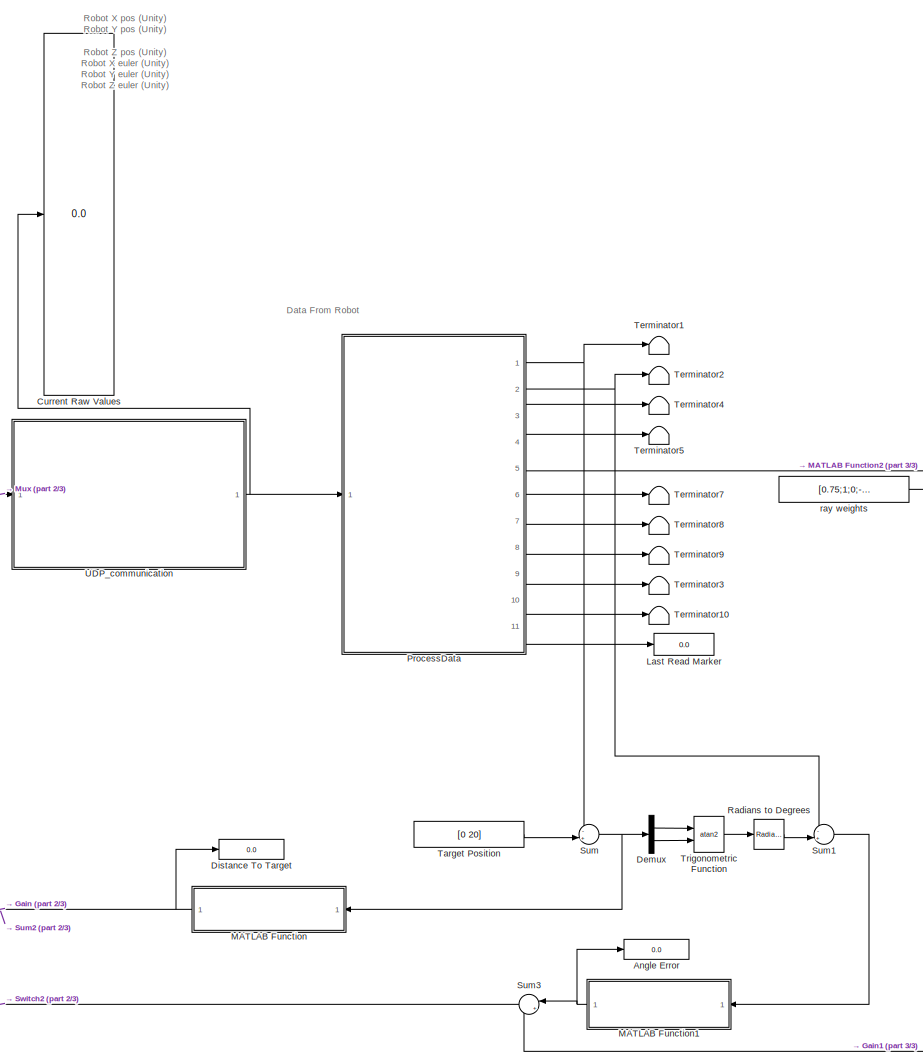
[diagram: root canvas - part 1/3, center side, full height]
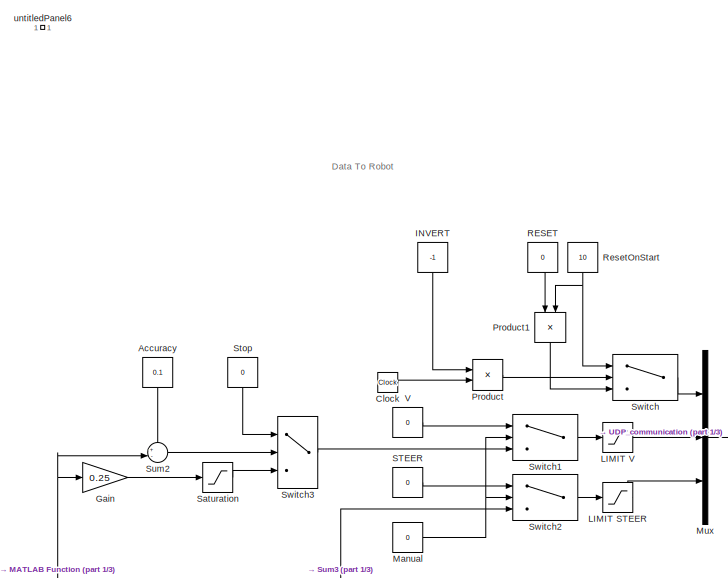
[diagram: root canvas - part 2/3, middle left region]
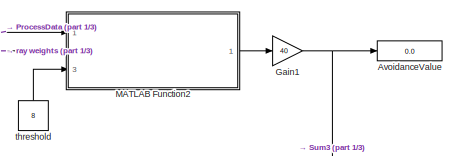
[diagram: root canvas - part 3/3, middle right region]
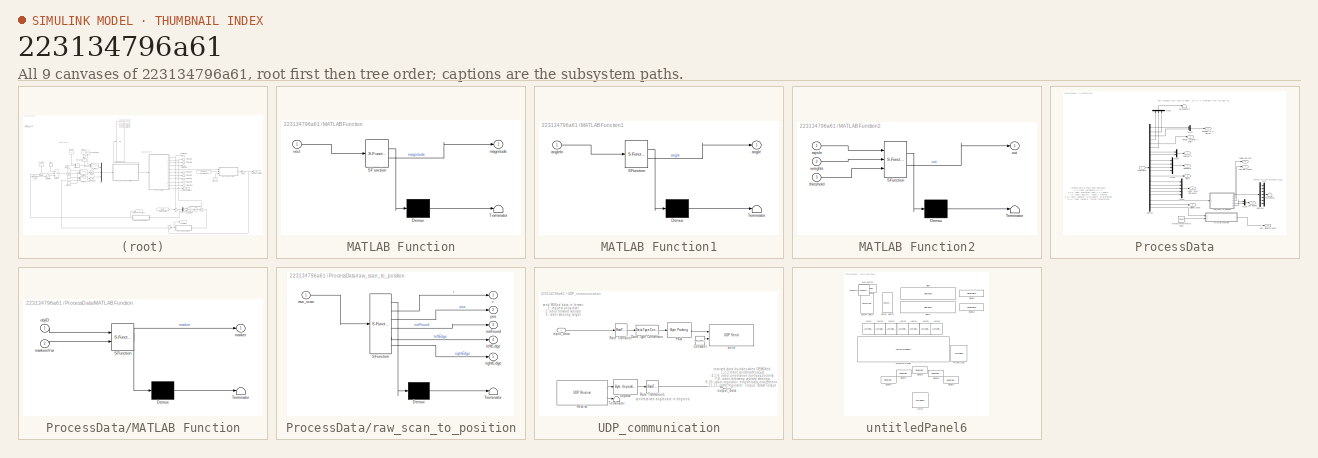
[diagram: thumbnail index - all 9 canvases of the model, root first then tree order]
MODEL slx_223134796a61
KIND model
CONFIG AbsTol = auto
CONFIG EnableMultiTasking = off
CONFIG FixedStep = 1/model_frequency
CONFIG MaxStep = auto
CONFIG MinStep = auto
CONFIG RelTol = 1e-3
CONFIG SampleTimeConstraint = Unconstrained
CONFIG SolverName = FixedStepAuto
CONFIG StartTime = 0.0
CONFIG StopTime = inf
BLOCK [Constant] Accuracy
  NameLocation = left
  Value = 0.1
BLOCK [Display] Angle Error
  Decimation = 1
  Ports = [1]
BLOCK [Display] AvoidanceValue
  Decimation = 1
  Ports = [1]
BLOCK [Clock] Clock
BLOCK [Display] Current Raw Values
  Decimation = 1
  NameLocation = top
  Ports = [1]
BLOCK [Demux] Demux
  Outputs = 2
  Ports = [1, 2]
BLOCK [Display] Distance To Target
  Decimation = 1
  Ports = [1]
BLOCK [Gain] Gain
  Gain = 0.25
BLOCK [Gain] Gain1
  Gain = 40
BLOCK [Constant] INVERT
  NameLocation = right
  Value = -1
BLOCK [Saturate] LIMIT STEER
  LowerLimit = steerLim(1)
  UpperLimit = steerLim(2)
BLOCK [Saturate] LIMIT V
  LowerLimit = velLim(1)
  UpperLimit = velLim(2)
BLOCK [Display] Last Read Marker
  Decimation = 1
  Ports = [1]
BLOCK [SubSystem] MATLAB Function
  ErrorFcn = Stateflow.Translate.translate
  NameLocation = top
  PermitHierarchicalResolution = ExplicitOnly
  Ports = [1, 1]
  RequestExecContextInheritance = off
  SFBlockType = MATLAB Function
  TreatAsAtomicUnit = on
BLOCK [Demux] MATLAB Function/ Demux 
  Outputs = 1
  Ports = [1, 1]
BLOCK [S-Function] MATLAB Function/ SFunction 
  EnableBusSupport = on
  FunctionName = sf_sfun
  PortCounts = [1 2]
  Ports = [1, 2]
  SFcnIsStateOwnerBlock = off
  SFunctionDeploymentMode = off
  Tag = Stateflow S-Function 1
BLOCK [Terminator] MATLAB Function/ Terminator 
BLOCK [Outport] MATLAB Function/magnitude
BLOCK [Inport] MATLAB Function/vect
BLOCK [SubSystem] MATLAB Function1
  ErrorFcn = Stateflow.Translate.translate
  NameLocation = top
  PermitHierarchicalResolution = ExplicitOnly
  Ports = [1, 1]
  RequestExecContextInheritance = off
  SFBlockType = MATLAB Function
  TreatAsAtomicUnit = on
BLOCK [Demux] MATLAB Function1/ Demux 
  Outputs = 1
  Ports = [1, 1]
BLOCK [S-Function] MATLAB Function1/ SFunction 
  EnableBusSupport = on
  FunctionName = sf_sfun
  PortCounts = [1 2]
  Ports = [1, 2]
  SFcnIsStateOwnerBlock = off
  SFunctionDeploymentMode = off
  Tag = Stateflow S-Function 3
BLOCK [Terminator] MATLAB Function1/ Terminator 
BLOCK [Outport] MATLAB Function1/angle
BLOCK [Inport] MATLAB Function1/angleIn
BLOCK [SubSystem] MATLAB Function2
  ErrorFcn = Stateflow.Translate.translate
  PermitHierarchicalResolution = ExplicitOnly
  Ports = [3, 1]
  RequestExecContextInheritance = off
  SFBlockType = MATLAB Function
  TreatAsAtomicUnit = on
BLOCK [Demux] MATLAB Function2/ Demux 
  Outputs = 1
  Ports = [1, 1]
BLOCK [S-Function] MATLAB Function2/ SFunction 
  EnableBusSupport = on
  FunctionName = sf_sfun
  PortCounts = [3 2]
  Ports = [3, 2]
  SFcnIsStateOwnerBlock = off
  SFunctionDeploymentMode = off
  Tag = Stateflow S-Function 5
BLOCK [Terminator] MATLAB Function2/ Terminator 
BLOCK [Outport] MATLAB Function2/out
BLOCK [Inport] MATLAB Function2/raysIn
BLOCK [Inport] MATLAB Function2/threshold
  Port = 3
BLOCK [Inport] MATLAB Function2/weights
  Port = 2
BLOCK [Constant] Manual
  Value = 0
BLOCK [Mux] Mux
  DisplayOption = bar
  Inputs = 3
  Ports = [3, 1]
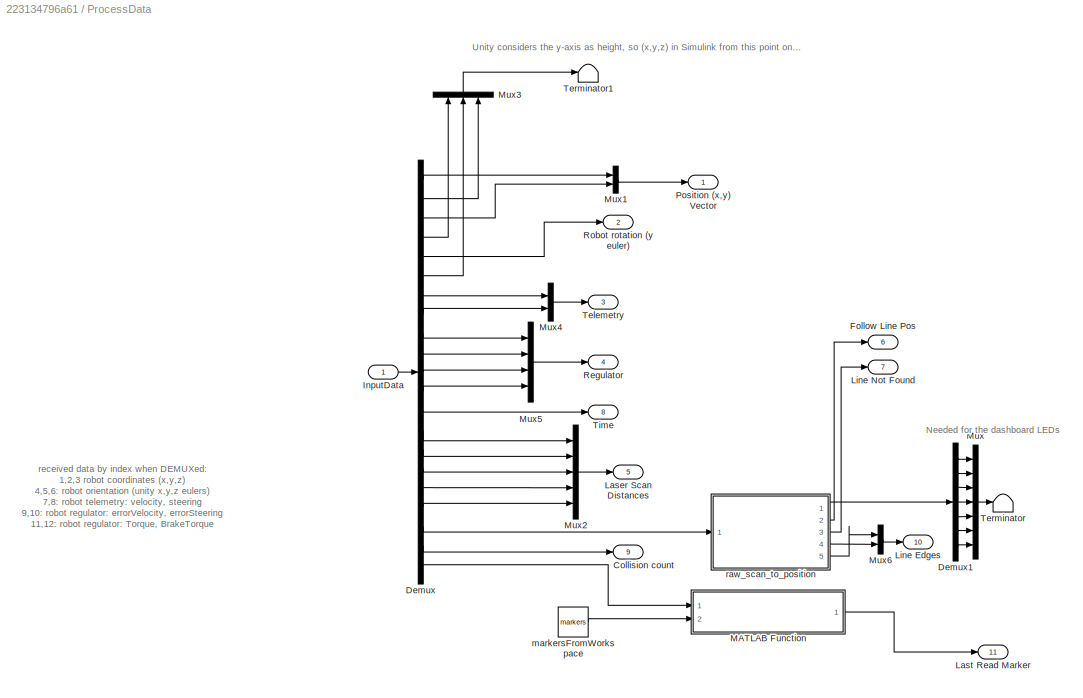
BLOCK [SubSystem] ProcessData
  Ports = [1, 11]
  RequestExecContextInheritance = off
BLOCK [Outport] ProcessData/Collision count
  NameLocation = top
  Port = 9
BLOCK [Demux] ProcessData/Demux
  Outputs = 21
  Ports = [1, 21]
BLOCK [Demux] ProcessData/Demux1
  Outputs = 7
  Ports = [1, 7]
BLOCK [Outport] ProcessData/Follow Line Pos
  NameLocation = top
  Port = 6
BLOCK [Inport] ProcessData/InputData
BLOCK [Outport] ProcessData/Laser Scan Distances
  Port = 5
BLOCK [Outport] ProcessData/Last Read Marker
  NameLocation = top
  Port = 11
BLOCK [Outport] ProcessData/Line Edges
  NameLocation = top
  Port = 10
BLOCK [Outport] ProcessData/Line Not Found
  Port = 7
BLOCK [SubSystem] ProcessData/MATLAB Function
  ErrorFcn = Stateflow.Translate.translate
  PermitHierarchicalResolution = ExplicitOnly
  Ports = [2, 1]
  RequestExecContextInheritance = off
  SFBlockType = MATLAB Function
  TreatAsAtomicUnit = on
BLOCK [Demux] ProcessData/MATLAB Function/ Demux 
  Outputs = 1
  Ports = [1, 1]
BLOCK [S-Function] ProcessData/MATLAB Function/ SFunction 
  EnableBusSupport = on
  FunctionName = sf_sfun
  PortCounts = [2 2]
  Ports = [2, 2]
  SFcnIsStateOwnerBlock = off
  SFunctionDeploymentMode = off
  Tag = Stateflow S-Function 4
BLOCK [Terminator] ProcessData/MATLAB Function/ Terminator 
BLOCK [Outport] ProcessData/MATLAB Function/marker
BLOCK [Inport] ProcessData/MATLAB Function/markersVar
  Port = 2
BLOCK [Inport] ProcessData/MATLAB Function/objID
BLOCK [Mux] ProcessData/Mux
  DisplayOption = bar
  Inputs = 7
  Ports = [7, 1]
BLOCK [Mux] ProcessData/Mux1
  DisplayOption = bar
  Inputs = 2
  Ports = [2, 1]
BLOCK [Mux] ProcessData/Mux2
  DisplayOption = bar
  Inputs = 5
  Ports = [5, 1]
BLOCK [Mux] ProcessData/Mux3
  DisplayOption = bar
  Inputs = 3
  NameLocation = right
  Ports = [3, 1]
BLOCK [Mux] ProcessData/Mux4
  DisplayOption = bar
  Inputs = 2
  Ports = [2, 1]
BLOCK [Mux] ProcessData/Mux5
  DisplayOption = bar
  Ports = [4, 1]
BLOCK [Mux] ProcessData/Mux6
  DisplayOption = bar
  Inputs = 2
  Ports = [2, 1]
BLOCK [Outport] ProcessData/Position (x,y) Vector
  NameLocation = top
BLOCK [Outport] ProcessData/Regulator
  Port = 4
BLOCK [Outport] ProcessData/Robot rotation (y euler)
  NameLocation = top
  Port = 2
BLOCK [Outport] ProcessData/Telemetry
  Port = 3
BLOCK [Terminator] ProcessData/Terminator
BLOCK [Terminator] ProcessData/Terminator1
BLOCK [Outport] ProcessData/Time
  Port = 8
BLOCK [Constant] ProcessData/markersFromWorkspace
  Value = markers
BLOCK [SubSystem] ProcessData/raw_scan_to_position
  ErrorFcn = Stateflow.Translate.translate
  PermitHierarchicalResolution = ExplicitOnly
  Ports = [1, 5]
  RequestExecContextInheritance = off
  SFBlockType = MATLAB Function
  TreatAsAtomicUnit = on
BLOCK [Demux] ProcessData/raw_scan_to_position/ Demux 
  Outputs = 1
  Ports = [1, 1]
BLOCK [S-Function] ProcessData/raw_scan_to_position/ SFunction 
  EnableBusSupport = on
  FunctionName = sf_sfun
  Parameters = rayDistance
  PortCounts = [1 6]
  Ports = [1, 6]
  SFcnIsStateOwnerBlock = off
  SFunctionDeploymentMode = off
  Tag = Stateflow S-Function 2
BLOCK [Terminator] ProcessData/raw_scan_to_position/ Terminator 
BLOCK [Outport] ProcessData/raw_scan_to_position/leftEdge
  Port = 4
BLOCK [Outport] ProcessData/raw_scan_to_position/notFound
  Port = 3
BLOCK [Outport] ProcessData/raw_scan_to_position/pos
  Port = 2
BLOCK [Outport] ProcessData/raw_scan_to_position/r
BLOCK [Inport] ProcessData/raw_scan_to_position/raw_scan
BLOCK [Outport] ProcessData/raw_scan_to_position/rightEdge
  Port = 5
BLOCK [Product] Product
  Ports = [2, 1]
BLOCK [Product] Product1
  NameLocation = left
  Ports = [2, 1]
BLOCK [Constant] RESET
  NameLocation = left
  Value = 0
BLOCK [Reference] Radians to Degrees  REF=simulink_extras/Transformations/Radians
to Degrees
  Ports = [1, 1]
  SourceBlock = simulink_extras/Transformations/Radians\nto Degrees
  SourceProductBaseCode = SL
  SourceType = RadiansToDegrees
BLOCK [Constant] ResetOnStart
  NameLocation = right
  Value = 10
BLOCK [Constant] STEER
  Value = 0
BLOCK [Saturate] Saturation
  LowerLimit = -1
  UpperLimit = 1
BLOCK [Constant] Stop
  NameLocation = left
  Value = 0
BLOCK [Sum] Sum
  Inputs = -+|
  Ports = [2, 1]
BLOCK [Sum] Sum1
  Inputs = -+|
  Ports = [2, 1]
BLOCK [Sum] Sum2
  Inputs = +-|
  NameLocation = top
  Ports = [2, 1]
BLOCK [Sum] Sum3
  Inputs = |++
  NameLocation = top
  Ports = [2, 1]
BLOCK [Switch] Switch
  Criteria = u2 > Threshold
  InputSameDT = off
  SaturateOnIntegerOverflow = off
  Threshold = -0.5
BLOCK [Switch] Switch1
  InputSameDT = off
  SaturateOnIntegerOverflow = off
  Threshold = 0.5
BLOCK [Switch] Switch2
  InputSameDT = off
  SaturateOnIntegerOverflow = off
  Threshold = 0.5
BLOCK [Switch] Switch3
  Criteria = u2 > Threshold
  InputSameDT = off
  SaturateOnIntegerOverflow = off
BLOCK [Constant] Target Position
  Value = [0 20]
BLOCK [Terminator] Terminator1
BLOCK [Terminator] Terminator10
BLOCK [Terminator] Terminator2
BLOCK [Terminator] Terminator3
BLOCK [Terminator] Terminator4
BLOCK [Terminator] Terminator5
BLOCK [Terminator] Terminator7
BLOCK [Terminator] Terminator8
BLOCK [Terminator] Terminator9
BLOCK [Trigonometry] Trigonometric Function
  Operator = atan2
  Ports = [2, 1]
BLOCK [SubSystem] UDP_communication
  Ports = [1, 1]
  RequestExecContextInheritance = off
BLOCK [Constant] UDP_communication/Constant
  Value = send_data_length
BLOCK [DataTypeConversion] UDP_communication/Data Type Conversion
  OutDataTypeStr = single
  RndMeth = Floor
  SaturateOnIntegerOverflow = off
BLOCK [Reference] UDP_communication/Pack  REF=slrealtimeutilitieslib/Byte Packing
  Ports = [1, 1]
  SourceBlock = slrealtimeutilitieslib/Byte Packing
  SourceProductBaseCode = XP
  SourceType = slrealtimebytepacking
BLOCK [RateTransition] UDP_communication/Rate Transition
BLOCK [RateTransition] UDP_communication/Rate Transition1
BLOCK [Reference] UDP_communication/Receive  REF=slrealtimeiplib/UDP Receive
  Ports = [0, 2]
  SourceBlock = slrealtimeiplib/UDP Receive
  SourceProductBaseCode = XP
  SourceType = slrealtimeudpreceive
BLOCK [Reference] UDP_communication/Send  REF=slrealtimeiplib/UDP Send
  Ports = [2]
  SourceBlock = slrealtimeiplib/UDP Send
  SourceProductBaseCode = XP
  SourceType = slrealtimeudpsend
BLOCK [Terminator] UDP_communication/Terminator
BLOCK [Reference] UDP_communication/Unpack  REF=slrealtimeutilitieslib/Byte Unpacking
  Ports = [1, 1]
  SourceBlock = slrealtimeutilitieslib/Byte Unpacking
  SourceProductBaseCode = XP
  SourceType = slreraltimebytepacking
BLOCK [Inport] UDP_communication/input_data
BLOCK [Outport] UDP_communication/output_data
BLOCK [Constant] V
  Value = 0
BLOCK [Constant] ray weights
  Value = [0.75;1;0;-1;-0.75]
BLOCK [Constant] threshold
  NameLocation = right
  Value = 8
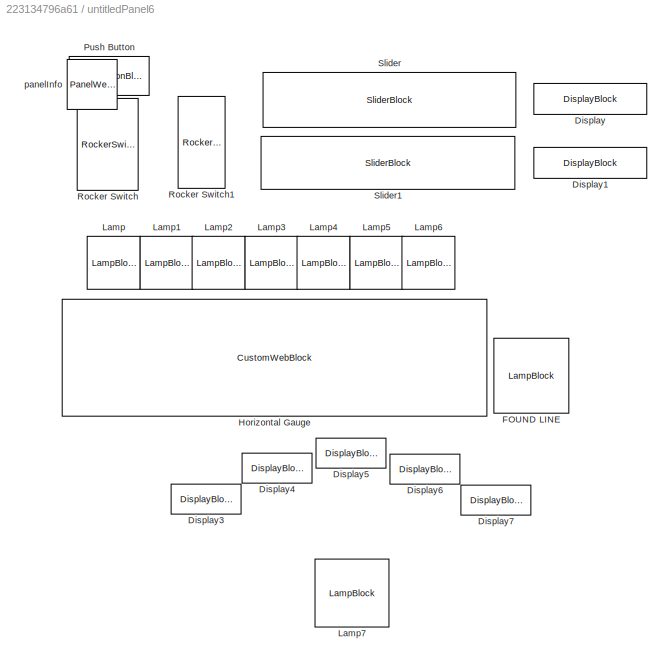
BLOCK [SubSystem] untitledPanel6
  IsWebBlockPanel = on
  Ports = []
  RequestExecContextInheritance = off
  Tag = HiddenForWebPanel
BLOCK [DisplayBlock] untitledPanel6/Display
  LabelPosition = Hide
  PanelInfo = {"panelId":"panelId-3b0286ef-9598-43d7-b16e-0edae3a5bc45","type":"panelChild","version":"2019b","zIndex":1500028}
  Tag = HiddenForWebPanel
  Transparency = 1
BLOCK [DisplayBlock] untitledPanel6/Display1
  LabelPosition = Hide
  PanelInfo = {"panelId":"panelId-3b0286ef-9598-43d7-b16e-0edae3a5bc45","type":"panelChild","version":"2019b","zIndex":1500030}
  Tag = HiddenForWebPanel
  Transparency = 1
BLOCK [DisplayBlock] untitledPanel6/Display3
  LabelPosition = Hide
  PanelInfo = {"panelId":"panelId-3b0286ef-9598-43d7-b16e-0edae3a5bc45","type":"panelChild","version":"2019b","zIndex":1500034}
  Tag = HiddenForWebPanel
  Transparency = 1
BLOCK [DisplayBlock] untitledPanel6/Display4
  LabelPosition = Hide
  PanelInfo = {"panelId":"panelId-3b0286ef-9598-43d7-b16e-0edae3a5bc45","type":"panelChild","version":"2019b","zIndex":1500036}
  Tag = HiddenForWebPanel
  Transparency = 1
BLOCK [DisplayBlock] untitledPanel6/Display5
  LabelPosition = Hide
  PanelInfo = {"panelId":"panelId-3b0286ef-9598-43d7-b16e-0edae3a5bc45","type":"panelChild","version":"2019b","zIndex":1500038}
  Tag = HiddenForWebPanel
  Transparency = 1
BLOCK [DisplayBlock] untitledPanel6/Display6
  LabelPosition = Hide
  PanelInfo = {"panelId":"panelId-3b0286ef-9598-43d7-b16e-0edae3a5bc45","type":"panelChild","version":"2019b","zIndex":1500040}
  Tag = HiddenForWebPanel
  Transparency = 1
BLOCK [DisplayBlock] untitledPanel6/Display7
  LabelPosition = Hide
  PanelInfo = {"panelId":"panelId-3b0286ef-9598-43d7-b16e-0edae3a5bc45","type":"panelChild","version":"2019b","zIndex":1500042}
  Tag = HiddenForWebPanel
  Transparency = 1
BLOCK [LampBlock] untitledPanel6/FOUND LINE
  NameLocation = top
  PanelInfo = {"panelId":"panelId-3b0286ef-9598-43d7-b16e-0edae3a5bc45","type":"panelChild","version":"2019b","zIndex":1500004}
  Tag = HiddenForWebPanel
BLOCK [CustomWebBlock] untitledPanel6/Horizontal Gauge
  Configuration = {"type":"LinearGauge","settings":{"BindingType":"signal","aspectRatio":3.7578947368421054,"fixedAspectRatio":"on","orientation":"horizontal"},"components":[{"name":"LinearScaleComponent","settings":{"bounds":{"max":0.3,"min":-0.3,"tickInterval":"auto"},"internalTickHeightScaleFactor":0.5,"labelColor":[250,245,199],"labelFont":{"font":"Arial","fontSize":12},"labelTransparency":1,"needleImage":{"siz...<+3835ch>
  PanelInfo = {"panelId":"panelId-3b0286ef-9598-43d7-b16e-0edae3a5bc45","type":"panelChild","version":"2019b","zIndex":1500002}
  ShowInitialText = on
  Tag = HiddenForWebPanel
BLOCK [LampBlock] untitledPanel6/Lamp
  PanelInfo = {"panelId":"panelId-3b0286ef-9598-43d7-b16e-0edae3a5bc45","type":"panelChild","version":"2019b","zIndex":1500006}
  Tag = HiddenForWebPanel
BLOCK [LampBlock] untitledPanel6/Lamp1
  PanelInfo = {"panelId":"panelId-3b0286ef-9598-43d7-b16e-0edae3a5bc45","type":"panelChild","version":"2019b","zIndex":1500008}
  Tag = HiddenForWebPanel
BLOCK [LampBlock] untitledPanel6/Lamp2
  PanelInfo = {"panelId":"panelId-3b0286ef-9598-43d7-b16e-0edae3a5bc45","type":"panelChild","version":"2019b","zIndex":1500010}
  Tag = HiddenForWebPanel
BLOCK [LampBlock] untitledPanel6/Lamp3
  PanelInfo = {"panelId":"panelId-3b0286ef-9598-43d7-b16e-0edae3a5bc45","type":"panelChild","version":"2019b","zIndex":1500012}
  Tag = HiddenForWebPanel
BLOCK [LampBlock] untitledPanel6/Lamp4
  PanelInfo = {"panelId":"panelId-3b0286ef-9598-43d7-b16e-0edae3a5bc45","type":"panelChild","version":"2019b","zIndex":1500014}
  Tag = HiddenForWebPanel
BLOCK [LampBlock] untitledPanel6/Lamp5
  PanelInfo = {"panelId":"panelId-3b0286ef-9598-43d7-b16e-0edae3a5bc45","type":"panelChild","version":"2019b","zIndex":1500016}
  Tag = HiddenForWebPanel
BLOCK [LampBlock] untitledPanel6/Lamp6
  PanelInfo = {"panelId":"panelId-3b0286ef-9598-43d7-b16e-0edae3a5bc45","type":"panelChild","version":"2019b","zIndex":1500018}
  Tag = HiddenForWebPanel
BLOCK [LampBlock] untitledPanel6/Lamp7
  LabelPosition = Hide
  PanelInfo = {"panelId":"panelId-3b0286ef-9598-43d7-b16e-0edae3a5bc45","type":"panelChild","version":"2019b","zIndex":1500048}
  Tag = HiddenForWebPanel
BLOCK [PushButtonBlock] untitledPanel6/Push Button
  ButtonText = RESET
  OffValue = 0.000000
  PanelInfo = {"panelId":"panelId-3b0286ef-9598-43d7-b16e-0edae3a5bc45","type":"panelChild","version":"2019b","zIndex":1500022}
  Tag = HiddenForWebPanel
BLOCK [RockerSwitchBlock] untitledPanel6/Rocker Switch
  PanelInfo = {"panelId":"panelId-3b0286ef-9598-43d7-b16e-0edae3a5bc45","type":"panelChild","version":"2019b","zIndex":1500020}
  Tag = HiddenForWebPanel
BLOCK [RockerSwitchBlock] untitledPanel6/Rocker Switch1
  PanelInfo = {"panelId":"panelId-3b0286ef-9598-43d7-b16e-0edae3a5bc45","type":"panelChild","version":"2019b","zIndex":1500046}
  Tag = HiddenForWebPanel
BLOCK [SliderBlock] untitledPanel6/Slider
  PanelInfo = {"panelId":"panelId-3b0286ef-9598-43d7-b16e-0edae3a5bc45","type":"panelChild","version":"2019b","zIndex":1500024}
  ScaleMax = 5
  ScaleMin = -2
  Tag = HiddenForWebPanel
  TickInterval = 0.5
BLOCK [SliderBlock] untitledPanel6/Slider1
  PanelInfo = {"panelId":"panelId-3b0286ef-9598-43d7-b16e-0edae3a5bc45","type":"panelChild","version":"2019b","zIndex":1500026}
  ScaleMax = 40
  ScaleMin = -40
  Tag = HiddenForWebPanel
  TickInterval = 20
BLOCK [PanelWebBlock] untitledPanel6/panelInfo
  PanelInfo = {"compacted":false,"height":619,"isActiveTab":true,"labels":{"label2777103104":{"left":"434","settings":{"backgroundColor":"rgba(0, 0, 0, 0)","bold":true,"font":"Arial","fontColor":"black","fontSize":0.9,"italicized":false,"underlined":false},"text":"LINE FOUND?","top":"270"},"label4548952663":{"left":"178","settings":{"backgroundColor":"rgba(0, 0, 0, 0)","bold":true,"font":"Arial","fontColor":"bl...<+1412ch>
  PanelSnapshot = iVBORw0KGgoAAAANSUhEUgAAAmcAAAJrCAYAAAClcDRqAAAACXBIWXMAAA7EAAAOxAGVKw4bAAAgAElEQVR4nOzdd1gUV9cA8DOzvdLr0jsKCIgFxYIC9t5N7MaISYxGY429t8SoiUn0jVGMUWPsJWLviDU2FJHe+/Y+8/2h8KEiWGme3/Psk7hzZ+bO7LJ79txGwDOfnafbEQDfAkBTALAFhBBCCCFU03IJAIBx5+lZALCkliuDEEIIIfTRI55lzM6QAMa2znS+v0hBkpSOT1EUs7YrhxBCCCH0sSBJ0kCRbBXzWVMm0daZzmsiKBZTBopB1XbtEEIIIYQ+MhRFMYHSiJnwtI8Z+IsUDMpAMVhstkIoEuWQJGmo5ToihBBCCH00KIpiKuRyOxKe...<+81868ch>
  Tag = HiddenForWebPanel
ANNOTATION (root): Robot X pos (Unity) Robot Y pos (Unity) Robot Z pos (Unity) Robot X euler (Unity) Robot Y euler (Unity) Robot Z euler (Unity) Telemetry: velocity Telemetry: steering Regulator: errorVelocity Regulator: errorSteering Regulator: Torque Regulator: BrakeTorque Unity sim time Lidar -60 Lidar -30 Lidar 0 Lidar +30 Lidar +60 Linefollow RawData Collision Count Last Read Tag (objID)
ANNOTATION (root): Data From Robot
ANNOTATION (root): Data To Robot
ANNOTATION ProcessData: Unity considers the y-axis as height, so (x,y,z) in Simulink from this point onwards equals (x,z,y) in Unity
ANNOTATION ProcessData: received data by index when DEMUXed: 1,2,3 robot coordinates (x,y,z) 4,5,6: robot orientation (unity x,y,z eulers) 7,8: robot telemetry: velocity, steering 9,10: robot regulator: errorVelocity, errorSteering 11,12: robot regulator: Torque, BrakeTorque 13: Unity simulation time 14-18: Lidar results 19: Linefollow binary results
ANNOTATION ProcessData: Needed for the dashboard LEDs
ANNOTATION UDP_communication: received data by index when DEMUXed: 1,2,3 robot coordinates (x,y,z) 4,5,6: robot orientation (unity x,y,z eulers) 7,8: robot telemetry: velocity, steering 9,10: robot regulator: errorVelocity, errorSteering 11,12: robot regulator: Torque, BrakeTorque 13: Unity simulation time 14-18: Lidar results 19: Linefollow binary results 20: Collision count 21: last read Tag
ANNOTATION UDP_communication: send MUXed data in format: 1: request unity reset 2: robot forward velocity 3: robot steering target
ANNOTATION UDP_communication: sent/received angles are in degrees!
LINE Accuracy:1 -> Sum2:1
LINE Clock:1 -> Product:2
LINE Demux:1 -> Trigonometric Function:1
LINE Demux:2 -> Trigonometric Function:2
NET Gain1:1 -> AvoidanceValue:1, Sum3:2
LINE Gain:1 -> Saturation:1
LINE INVERT:1 -> Product:1
LINE LIMIT STEER:1 -> Mux:3
LINE LIMIT V:1 -> Mux:2
NET MATLAB Function1:1 -> Angle Error:1, Sum3:1
LINE MATLAB Function2:1 -> Gain1:1
NET MATLAB Function:1 -> Distance To Target:1, Gain:1, Sum2:2
NET Manual:1 -> Switch1:2, Switch2:2
LINE Mux:1 -> UDP_communication:1
LINE ProcessData/Demux1:1 -> ProcessData/Mux:1
LINE ProcessData/Demux1:2 -> ProcessData/Mux:2
LINE ProcessData/Demux1:3 -> ProcessData/Mux:3
LINE ProcessData/Demux1:4 -> ProcessData/Mux:4
LINE ProcessData/Demux1:5 -> ProcessData/Mux:5
LINE ProcessData/Demux1:6 -> ProcessData/Mux:6
LINE ProcessData/Demux1:7 -> ProcessData/Mux:7
LINE ProcessData/Demux:1 -> ProcessData/Mux1:1
LINE ProcessData/Demux:10 -> ProcessData/Mux5:2
LINE ProcessData/Demux:11 -> ProcessData/Mux5:3
LINE ProcessData/Demux:12 -> ProcessData/Mux5:4
LINE ProcessData/Demux:13 -> ProcessData/Time:1
LINE ProcessData/Demux:14 -> ProcessData/Mux2:1
LINE ProcessData/Demux:15 -> ProcessData/Mux2:2
LINE ProcessData/Demux:16 -> ProcessData/Mux2:3
LINE ProcessData/Demux:17 -> ProcessData/Mux2:4
LINE ProcessData/Demux:18 -> ProcessData/Mux2:5
LINE ProcessData/Demux:19 -> ProcessData/raw_scan_to_position:1
LINE ProcessData/Demux:2 -> ProcessData/Mux3:3
LINE ProcessData/Demux:20 -> ProcessData/Collision count:1
LINE ProcessData/Demux:21 -> ProcessData/MATLAB Function:1
LINE ProcessData/Demux:3 -> ProcessData/Mux1:2
LINE ProcessData/Demux:4 -> ProcessData/Mux3:1
LINE ProcessData/Demux:5 -> ProcessData/Robot rotation (y euler):1
LINE ProcessData/Demux:6 -> ProcessData/Mux3:2
LINE ProcessData/Demux:7 -> ProcessData/Mux4:1
LINE ProcessData/Demux:8 -> ProcessData/Mux4:2
LINE ProcessData/Demux:9 -> ProcessData/Mux5:1
LINE ProcessData/InputData:1 -> ProcessData/Demux:1
LINE ProcessData/MATLAB Function:1 -> ProcessData/Last Read Marker:1
LINE ProcessData/Mux1:1 -> ProcessData/Position (x,y) Vector:1
LINE ProcessData/Mux2:1 -> ProcessData/Laser Scan Distances:1
LINE ProcessData/Mux3:1 -> ProcessData/Terminator1:1
LINE ProcessData/Mux4:1 -> ProcessData/Telemetry:1
LINE ProcessData/Mux5:1 -> ProcessData/Regulator:1
LINE ProcessData/Mux6:1 -> ProcessData/Line Edges:1
LINE ProcessData/Mux:1 -> ProcessData/Terminator:1
LINE ProcessData/markersFromWorkspace:1 -> ProcessData/MATLAB Function:2
LINE ProcessData/raw_scan_to_position:1 -> ProcessData/Demux1:1
LINE ProcessData/raw_scan_to_position:2 -> ProcessData/Follow Line Pos:1
LINE ProcessData/raw_scan_to_position:3 -> ProcessData/Line Not Found:1
LINE ProcessData/raw_scan_to_position:4 -> ProcessData/Mux6:2
LINE ProcessData/raw_scan_to_position:5 -> ProcessData/Mux6:1
NET ProcessData:1 -> Sum:1, Terminator1:1
LINE ProcessData:10 -> Terminator10:1
LINE ProcessData:11 -> Last Read Marker:1
NET ProcessData:2 -> Sum1:1, Terminator2:1
LINE ProcessData:3 -> Terminator4:1
LINE ProcessData:4 -> Terminator5:1
LINE ProcessData:5 -> MATLAB Function2:1
LINE ProcessData:6 -> Terminator7:1
LINE ProcessData:7 -> Terminator8:1
LINE ProcessData:8 -> Terminator9:1
LINE ProcessData:9 -> Terminator3:1
LINE Product1:1 -> Switch:3
LINE Product:1 -> Switch:2
LINE RESET:1 -> Product1:1
LINE Radians to Degrees:1 -> Sum1:2
NET ResetOnStart:1 -> Product1:2, Switch:1
LINE STEER:1 -> Switch2:1
LINE Saturation:1 -> Switch3:3
LINE Stop:1 -> Switch3:1
LINE Sum1:1 -> MATLAB Function1:1
LINE Sum2:1 -> Switch3:2
LINE Sum3:1 -> Switch2:3
NET Sum:1 -> Demux:1, MATLAB Function:1
LINE Switch1:1 -> LIMIT V:1
LINE Switch2:1 -> LIMIT STEER:1
LINE Switch3:1 -> Switch1:3
LINE Switch:1 -> Mux:1
LINE Target Position:1 -> Sum:2
LINE Trigonometric Function:1 -> Radians to Degrees:1
LINE UDP_communication/Constant:1 -> UDP_communication/Send:2
LINE UDP_communication/Data Type Conversion:1 -> UDP_communication/Pack:1
LINE UDP_communication/Pack:1 -> UDP_communication/Send:1
LINE UDP_communication/Rate Transition1:1 -> UDP_communication/output_data:1
LINE UDP_communication/Rate Transition:1 -> UDP_communication/Data Type Conversion:1
LINE UDP_communication/Receive:1 -> UDP_communication/Unpack:1
LINE UDP_communication/Receive:2 -> UDP_communication/Terminator:1
LINE UDP_communication/Unpack:1 -> UDP_communication/Rate Transition1:1
LINE UDP_communication/input_data:1 -> UDP_communication/Rate Transition:1
NET UDP_communication:1 -> Current Raw Values:1, ProcessData:1
LINE V:1 -> Switch1:1
LINE ray weights:1 -> MATLAB Function2:2
LINE threshold:1 -> MATLAB Function2:3
note: NET lines group one-source signal fan-out (src -> all destinations, sorted); 1:1 wires keep LINE
CHART MATLAB Function states=1 transitions=1
  STATE_LABEL 'eML_blk_kernel()'
  STATE_LABEL 'SCRIPT:\nfunction magnitude=VectorMagnitude(vect)\nmagnitude=sqrt(vect(1)*vect(1)+vect(2)*vect(2));'
CHART ProcessData/raw_scan_to_position states=1 transitions=1
  STATE_LABEL 'eML_blk_kernel()'
  STATE_LABEL 'SCRIPT:\nfunction [r,pos,notFound,leftEdge,rightEdge] = fcn(raw_scan,rayDistance)\nleftEdge=0;\nrightEdge=0;\nraw_scan=round(raw_scan);\nresult=arrayfun(@(x) mod(floor(raw_scan/10^x),10),floor(log10(raw_scan)):-1:0);\nif length(result)<7\n    tempZeros=zeros(1,7-length(result));\n    result=[tempZeros,result];\nend\nr=zeros(1,7);\npos=0;\ncount=0;\n\nfor ii=1:7\n    r(ii)=result(ii);\n    currPos=(-4+ii)*rayDista...<+262ch>'
CHART MATLAB Function1 states=1 transitions=1
  STATE_LABEL 'eML_blk_kernel()'
  STATE_LABEL 'SCRIPT:\nfunction angle=Handle180Transition(angleIn)\n\nangle=angleIn;\nif (angleIn>180)\n    angle=angleIn-360;\nend\nif (angleIn<-180)\n    angle=angleIn+360;\nend'
CHART ProcessData/MATLAB Function states=1 transitions=1
  STATE_LABEL 'eML_blk_kernel()'
  STATE_LABEL 'SCRIPT:\nfunction marker=getTagID(objID,markersVar)\nmarker=0;\nfor ii=1:size(markersVar,1)\n    if (markersVar(ii)==objID)\n       marker=ii+1;\n       break;\n    end\nend'
CHART MATLAB Function2 states=1 transitions=1
  STATE_LABEL 'eML_blk_kernel()'
  STATE_LABEL 'SCRIPT:\nfunction out=CalculateAvoidance(raysIn, weights,threshold)\nout=weights(3);\ncount=0;\nfor i=1:5\n    if raysIn(i)<threshold\n        count=count+1;\n        out=out+weights(i);\n    end\nend\nend'
CHART  states=0 transitions=0
CHART  states=0 transitions=0
CHART  states=0 transitions=0
CHART  states=0 transitions=0
CHART  states=0 transitions=0
